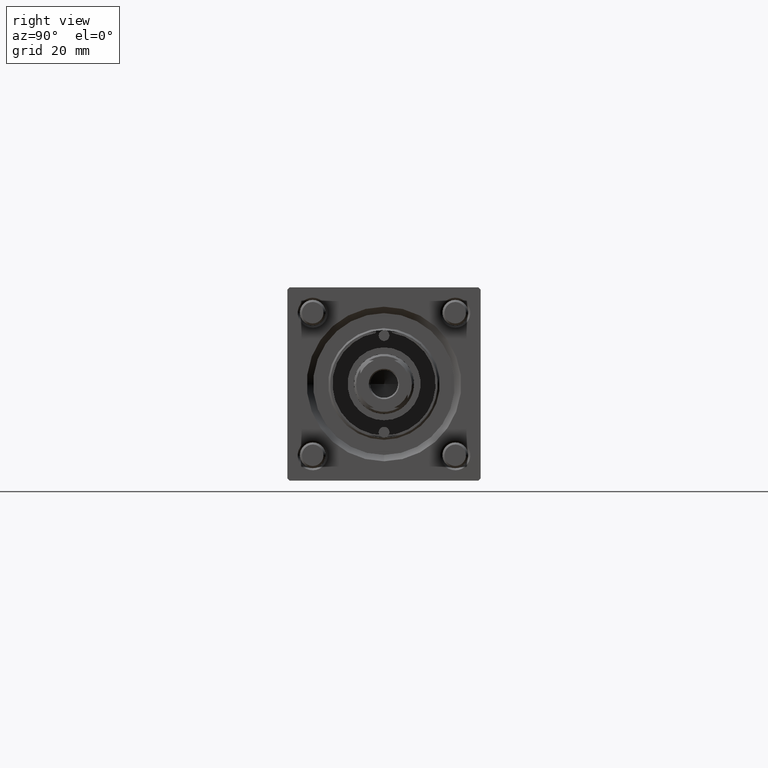
[diagram: clean part render]
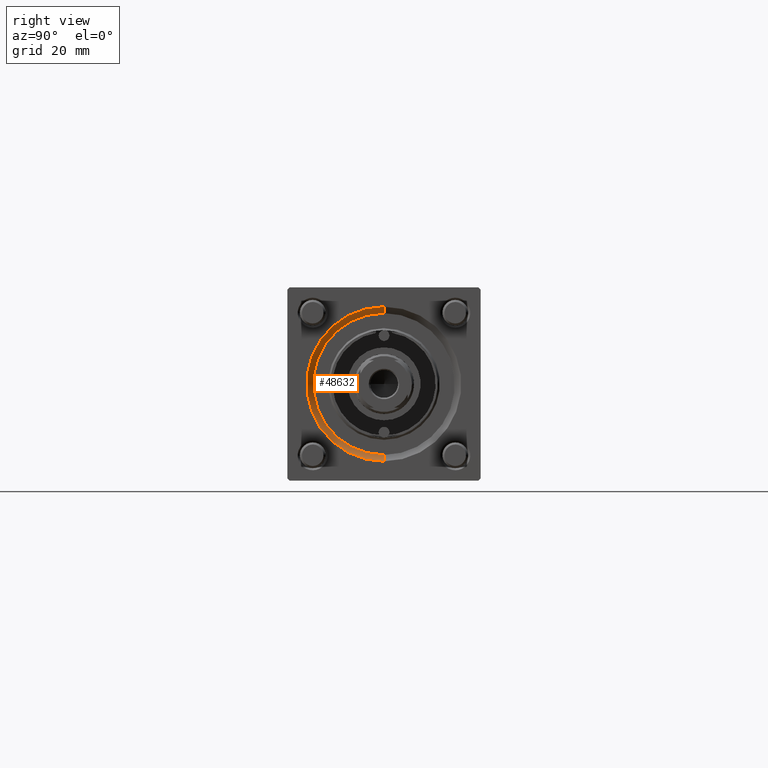
[diagram: same view with one face highlighted and labeled with its STEP entity id]
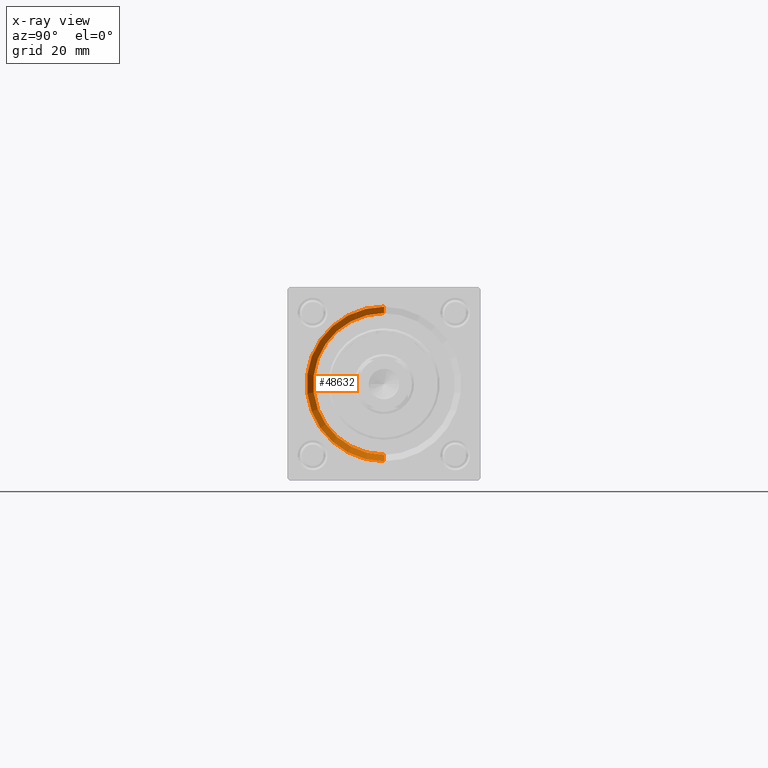
[diagram: x-ray of the same camera — body ghosted, the highlighted face saturated]
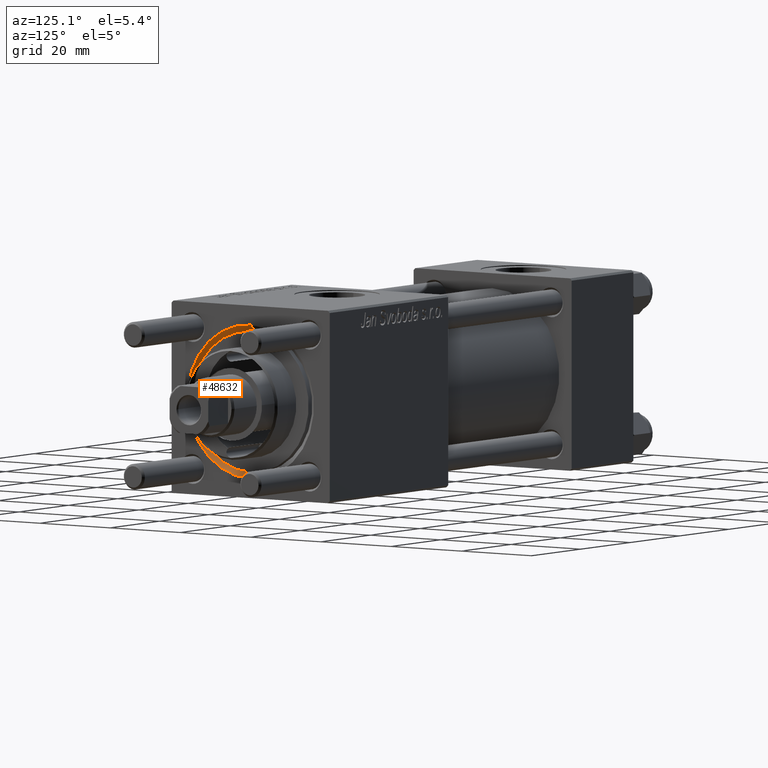
[diagram: same view with one face highlighted and labeled with its STEP entity id]
A machine part, right view. The second image highlights one B-rep face of the part: STEP entity #48632.
The next image is the same camera in x-ray: the body ghosted, the highlighted face saturated — about 0% of this face is hidden behind the body in this view.
A second angle (auxiliary view) of the same face is appended — the face is thin or edge-on in the first view.
In plain terms, the highlighted conical surface has half-angle 45 deg.
Its self-contained STEP definition (entity closure, byte-faithful):
#1970 = LINE ( 'NONE', #54994, #42903 ) ;
#2934 = VERTEX_POINT ( 'NONE', #45314 ) ;
#4492 = CARTESIAN_POINT ( 'NONE',  ( 121.5000000000000142, 0.000000000000000000, 0.000000000000000000 ) ) ;
#5888 = VERTEX_POINT ( 'NONE', #7909 ) ;
#7909 = CARTESIAN_POINT ( 'NONE',  ( 123.0000000000000142, 2.204364238465235822E-15, 18.00000000000000355 ) ) ;
#8284 = VECTOR ( 'NONE', #27268, 1000.000000000000114 ) ;
#9471 = FACE_OUTER_BOUND ( 'NONE', #38353, .T. ) ;
#9683 = CARTESIAN_POINT ( 'NONE',  ( 121.5000000000000142, 2.020667218593133100E-15, 16.50000000000000000 ) ) ;
#9876 = AXIS2_PLACEMENT_3D ( 'NONE', #56443, #26492, #31378 ) ;
#11278 = EDGE_CURVE ( 'NONE', #2934, #5888, #44571, .T. ) ;
#13434 = DIRECTION ( 'NONE',  ( -1.000000000000000000, 0.000000000000000000, -0.000000000000000000 ) ) ;
#15530 = DIRECTION ( 'NONE',  ( 0.7071067811865474617, 0.000000000000000000, -0.7071067811865474617 ) ) ;
#17965 = AXIS2_PLACEMENT_3D ( 'NONE', #52907, #13434, #31002 ) ;
#18056 = DIRECTION ( 'NONE',  ( 0.000000000000000000, 0.000000000000000000, 1.000000000000000000 ) ) ;
#18850 = ORIENTED_EDGE ( 'NONE', *, *, #48339, .F. ) ;
#19133 = ORIENTED_EDGE ( 'NONE', *, *, #50638, .F. ) ;
#21788 = AXIS2_PLACEMENT_3D ( 'NONE', #4492, #56360, #18056 ) ;
#24433 = CARTESIAN_POINT ( 'NONE',  ( 121.5000000000000142, 0.000000000000000000, -16.50000000000000000 ) ) ;
#26492 = DIRECTION ( 'NONE',  ( 1.000000000000000000, 0.000000000000000000, 0.000000000000000000 ) ) ;
#27268 = DIRECTION ( 'NONE',  ( 0.7071067811865474617, 8.659560562354932858E-17, 0.7071067811865474617 ) ) ;
#31002 = DIRECTION ( 'NONE',  ( 0.000000000000000000, 0.000000000000000000, 1.000000000000000000 ) ) ;
#31055 = EDGE_CURVE ( 'NONE', #32803, #5888, #36343, .T. ) ;
#31378 = DIRECTION ( 'NONE',  ( 0.000000000000000000, 0.000000000000000000, -1.000000000000000000 ) ) ;
#32295 = ORIENTED_EDGE ( 'NONE', *, *, #31055, .F. ) ;
#32803 = VERTEX_POINT ( 'NONE', #45399 ) ;
#32830 = CIRCLE ( 'NONE', #21788, 16.50000000000000000 ) ;
#32860 = CONICAL_SURFACE ( 'NONE', #9876, 16.50000000000000000, 0.7853981633974482790 ) ;
#36343 = CIRCLE ( 'NONE', #17965, 18.00000000000000355 ) ;
#38353 = EDGE_LOOP ( 'NONE', ( #18850, #56312, #32295, #19133 ) ) ;
#38476 = VERTEX_POINT ( 'NONE', #24433 ) ;
#42903 = VECTOR ( 'NONE', #15530, 1000.000000000000114 ) ;
#44571 = LINE ( 'NONE', #9683, #8284 ) ;
#45314 = CARTESIAN_POINT ( 'NONE',  ( 121.5000000000000142, 2.020667218593133100E-15, 16.50000000000000000 ) ) ;
#45399 = CARTESIAN_POINT ( 'NONE',  ( 123.0000000000000142, 0.000000000000000000, -18.00000000000000355 ) ) ;
#48339 = EDGE_CURVE ( 'NONE', #2934, #38476, #32830, .T. ) ;
#48632 = ADVANCED_FACE ( 'NONE', ( #9471 ), #32860, .F. ) ;
#50638 = EDGE_CURVE ( 'NONE', #38476, #32803, #1970, .T. ) ;
#52907 = CARTESIAN_POINT ( 'NONE',  ( 123.0000000000000142, 0.000000000000000000, 0.000000000000000000 ) ) ;
#54994 = CARTESIAN_POINT ( 'NONE',  ( 121.5000000000000142, 0.000000000000000000, -16.50000000000000000 ) ) ;
#56312 = ORIENTED_EDGE ( 'NONE', *, *, #11278, .T. ) ;
#56360 = DIRECTION ( 'NONE',  ( 1.000000000000000000, 0.000000000000000000, 0.000000000000000000 ) ) ;
#56443 = CARTESIAN_POINT ( 'NONE',  ( 121.5000000000000142, 0.000000000000000000, 0.000000000000000000 ) ) ;